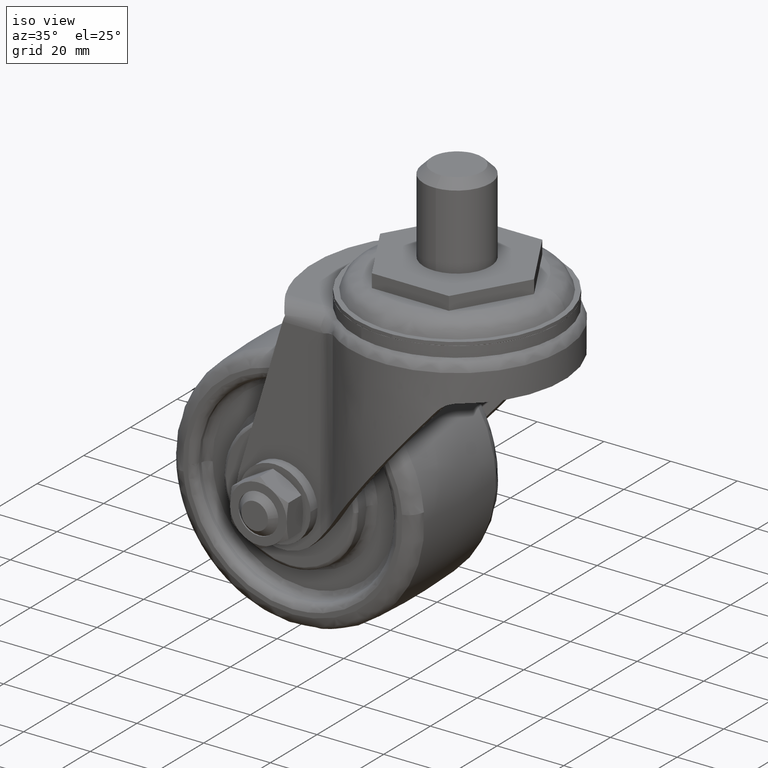
[diagram: clean part render]
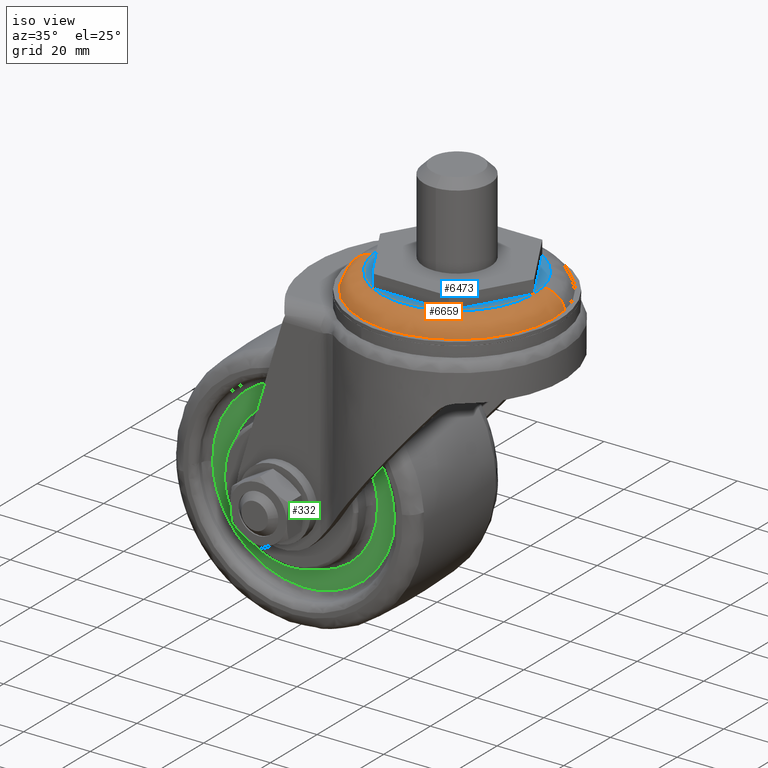
[diagram: same view with three faces highlighted in distinct colors, each labeled with its STEP entity id]
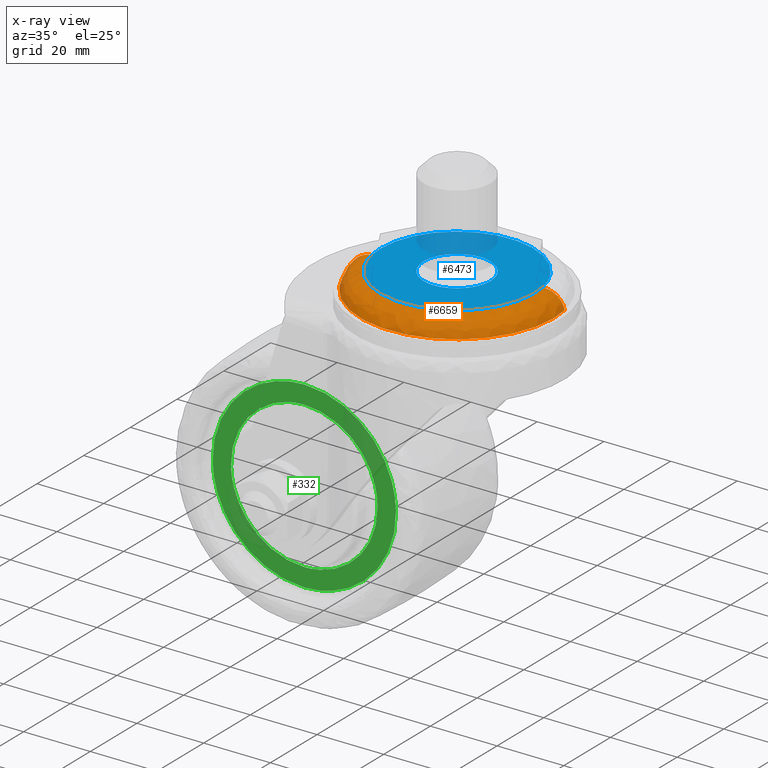
[diagram: x-ray of the same camera — body ghosted, the three highlighted faces saturated]
A machine part, iso view with three faces highlighted in distinct colors.
The next image is the same camera in x-ray (body ghosted, the three faces saturated) — at least one of them is partly hidden behind the body in this view.
Their STEP definitions:

[orange] entity #6659 — the highlighted face is a freeform B-spline surface patch.
#6379=CARTESIAN_POINT('',(-22.592620521137309,-4.309772859542733,-1.379669E-014));
#6380=VERTEX_POINT('',#6379);
#6396=CARTESIAN_POINT('',(23.000014000000000,0.0,0.0));
#6397=VERTEX_POINT('',#6396);
#6398=CARTESIAN_POINT('',(23.000014000000000,0.0,0.0));
#6399=CARTESIAN_POINT('',(23.000028669473270,-0.972803588417565,-2.757607E-017));
#6400=CARTESIAN_POINT('',(22.862408563039349,-3.139548392915637,-1.302827E-016));
#6401=CARTESIAN_POINT('',(22.231122699645510,-6.179443997466869,-4.058087E-016));
#6402=CARTESIAN_POINT('',(21.083316254201819,-9.391740116590832,-8.411413E-016));
#6403=CARTESIAN_POINT('',(19.691026040012481,-12.018677507847629,-1.333206E-015));
#6404=CARTESIAN_POINT('',(17.993055840135131,-14.396727757021930,-1.909896E-015));
#6405=CARTESIAN_POINT('',(16.256694638444671,-16.349764382491209,-2.486050E-015));
#6406=CARTESIAN_POINT('',(13.665208196813319,-18.636460424452650,-3.328141E-015));
#6407=CARTESIAN_POINT('',(10.794774688427260,-20.418823210716528,-4.239597E-015));
#6408=CARTESIAN_POINT('',(7.613433900181442,-21.763400794985600,-5.231890E-015));
#6409=CARTESIAN_POINT('',(4.800924576189715,-22.568614308253789,-6.098269E-015));
#6410=CARTESIAN_POINT('',(1.553116950321378,-23.027597412349941,-7.085390E-015));
#6411=CARTESIAN_POINT('',(-1.506576610872834,-23.015936225283621,-8.002747E-015));
#6412=CARTESIAN_POINT('',(-4.227801998931323,-22.650207870825199,-8.808550E-015));
#6413=CARTESIAN_POINT('',(-6.895740033823636,-22.004703452936841,-9.590438E-015));
#6414=CARTESIAN_POINT('',(-10.048263871403179,-20.813213216455601,-1.050219E-014));
#6415=CARTESIAN_POINT('',(-13.341280400072590,-18.876845342691340,-1.143496E-014));
#6416=CARTESIAN_POINT('',(-16.314995680123570,-16.348654907077680,-1.225518E-014));
#6417=CARTESIAN_POINT('',(-18.362376011001569,-13.954957346354240,-1.280138E-014));
#6418=CARTESIAN_POINT('',(-20.110925887382479,-11.290195269071550,-1.325027E-014));
#6419=CARTESIAN_POINT('',(-21.589075219274580,-8.259831074928215,-1.360769E-014));
#6420=CARTESIAN_POINT('',(-22.327612642162521,-5.699756885056393,-1.375662E-014));
#6421=CARTESIAN_POINT('',(-22.592620521137309,-4.309772859542733,-1.379669E-014));
#6422=B_SPLINE_CURVE_WITH_KNOTS('',3,(#6398,#6399,#6400,#6401,#6402,#6403,#6404,#6405,#6406,#6407,#6408,#6409,#6410,#6411,#6412,#6413,#6414,#6415,#6416,#6417,#6418,#6419,#6420,#6421),.UNSPECIFIED.,.F.,.U.,(4,1,1,1,1,1,1,1,1,1,1,1,1,1,1,1,1,1,1,1,1,4),(0.000000130140734,2.918419872654539,6.500220598274105,9.286116878791951,13.133236202588710,15.388441691995279,18.041623103560301,20.960137027012749,25.735854117803591,28.123707093906042,31.307524444089822,34.491407986216117,37.940405197693202,40.460931165445452,42.716133702046243,46.165278327179877,50.543038554363861,54.124845774179811,57.839304224812281,59.961864093602550,63.676327865737562,67.921368662274347),.UNSPECIFIED.);
#6423=EDGE_CURVE('',#6397,#6380,#6422,.T.);
#6425=CARTESIAN_POINT('',(22.592620521137309,4.309772859542731,-1.367286E-014));
#6426=VERTEX_POINT('',#6425);
#6427=CARTESIAN_POINT('',(22.592620521137306,4.309772859542731,-1.367286E-014));
#6428=CARTESIAN_POINT('',(23.000014001204047,2.174141440883160,-6.836428E-015));
#6429=CARTESIAN_POINT('',(23.000014000000000,0.0,0.0));
#6437=(BOUNDED_CURVE()B_SPLINE_CURVE(2,(#6427,#6428,#6429),.UNSPECIFIED.,.F.,.U.)B_SPLINE_CURVE_WITH_KNOTS((3,3),(0.467838633738463,0.500000000000000),.UNSPECIFIED.)CURVE()GEOMETRIC_REPRESENTATION_ITEM()RATIONAL_B_SPLINE_CURVE((0.934335795156706,0.962320615656880,1.0))REPRESENTATION_ITEM(''));
#6438=EDGE_CURVE('',#6426,#6397,#6437,.T.);
#6503=CARTESIAN_POINT('',(-28.486344023136660,-5.434060746360943,-4.999999999947228));
#6504=VERTEX_POINT('',#6503);
#6520=CARTESIAN_POINT('',(-22.592620521137302,-4.309772859542732,-1.379669E-014));
#6521=CARTESIAN_POINT('',(-27.585914043612377,-5.262294541504986,-2.042939E-009));
#6522=CARTESIAN_POINT('',(-28.486344023136656,-5.434060746360943,-4.999999999947228));
#6530=(BOUNDED_CURVE()B_SPLINE_CURVE(2,(#6520,#6521,#6522),.UNSPECIFIED.,.F.,.U.)B_SPLINE_CURVE_WITH_KNOTS((3,3),(-1.709144384682278,-0.296801827041482),.UNSPECIFIED.)CURVE()GEOMETRIC_REPRESENTATION_ITEM()RATIONAL_B_SPLINE_CURVE((0.896528474551751,0.688060493416934,0.894780459929866))REPRESENTATION_ITEM(''));
#6531=EDGE_CURVE('',#6380,#6504,#6530,.T.);
#6535=CARTESIAN_POINT('',(28.486344023136660,5.434060746360942,-4.999999999947229));
#6536=VERTEX_POINT('',#6535);
#6537=CARTESIAN_POINT('',(22.592620521137309,4.309772859542731,-1.367286E-014));
#6538=CARTESIAN_POINT('',(27.585914043612377,5.262294541504983,-2.042941E-009));
#6539=CARTESIAN_POINT('',(28.486344023136660,5.434060746360942,-4.999999999947228));
#6547=(BOUNDED_CURVE()B_SPLINE_CURVE(2,(#6537,#6538,#6539),.UNSPECIFIED.,.F.,.U.)B_SPLINE_CURVE_WITH_KNOTS((3,3),(-1.709144384682278,-0.296801827041482),.UNSPECIFIED.)CURVE()GEOMETRIC_REPRESENTATION_ITEM()RATIONAL_B_SPLINE_CURVE((0.896528474551751,0.688060493416934,0.894780459929866))REPRESENTATION_ITEM(''));
#6548=EDGE_CURVE('',#6426,#6536,#6547,.T.);
#6581=CARTESIAN_POINT('',(22.096084218915081,4.858699529251706,-0.012154295163467));
#6582=CARTESIAN_POINT('',(22.154974723544179,4.549984692801559,-0.012154295163467));
#6583=CARTESIAN_POINT('',(26.452208210416028,-17.976902136287794,-0.012154295163467));
#6584=CARTESIAN_POINT('',(4.237653037064117,-22.214555173351915,-0.012154295163467));
#6585=CARTESIAN_POINT('',(-17.976902136287794,-26.452208210416028,-0.012154295163467));
#6586=CARTESIAN_POINT('',(-22.274135623131496,-3.925321381474259,-0.012154295163467));
#6587=CARTESIAN_POINT('',(-22.333026127733092,-3.616606545168286,-0.012154295163467));
#6588=CARTESIAN_POINT('',(27.726205353180220,6.096704717576758,0.352151653519839));
#6589=CARTESIAN_POINT('',(27.800101261999277,5.709328797654123,0.352151653519839));
#6590=CARTESIAN_POINT('',(33.192277401768784,-22.557448428715890,0.352151653519839));
#6591=CARTESIAN_POINT('',(5.317414486526452,-27.874862915242343,0.352151653519839));
#6592=CARTESIAN_POINT('',(-22.557448428715869,-33.192277401768784,0.352151653519839));
#6593=CARTESIAN_POINT('',(-27.949624568450076,-4.925500175583969,0.352151653519839));
#6594=CARTESIAN_POINT('',(-28.023520477234616,-4.538124255842245,0.352151653519839));
#6595=CARTESIAN_POINT('',(28.390646760486486,6.242808485145253,-5.381540011107967));
#6596=CARTESIAN_POINT('',(28.466313539174834,5.846149340269499,-5.381540011107966));
#6597=CARTESIAN_POINT('',(33.987709853761416,-23.098023764875080,-5.381540011107967));
#6598=CARTESIAN_POINT('',(5.444843044443163,-28.542866809318244,-5.381540011107966));
#6599=CARTESIAN_POINT('',(-23.098023764875080,-33.987709853761416,-5.381540011107967));
#6600=CARTESIAN_POINT('',(-28.619420079425488,-5.043536748806451,-5.381540011107967));
#6601=CARTESIAN_POINT('',(-28.695086858078497,-4.646877604115943,-5.381540011107967));
#6609=(BOUNDED_SURFACE()B_SPLINE_SURFACE(2,2,((#6581,#6588,#6595),(#6582,#6589,#6596),(#6583,#6590,#6597),(#6584,#6591,#6598),(#6585,#6592,#6599),(#6586,#6593,#6600),(#6587,#6594,#6601)),.UNSPECIFIED.,.F.,.F.,.U.)B_SPLINE_SURFACE_WITH_KNOTS((3,1,2,1,3),(3,3),(0.0,0.962882703629475,49.107017864329023,97.251153025028572,98.214035728200400),(0.0,9.718775954552323),.UNSPECIFIED.)GEOMETRIC_REPRESENTATION_ITEM()RATIONAL_B_SPLINE_SURFACE(((0.929149921966840,0.674091993067575,0.927204762973818),(0.923770116082894,0.670188980233059,0.921836219618715),(0.649400016117692,0.471135325756949,0.648040508624277),(0.918390310198947,0.666285967398543,0.916467676263612),(0.649400016117692,0.471135325756949,0.648040508624277),(0.923770116080337,0.670188980231204,0.921836219616163),(0.929149921961726,0.674091993063865,0.927204762968715)))REPRESENTATION_ITEM('')SURFACE());
#6610=CARTESIAN_POINT('',(29.000014000000000,0.0,-5.0));
#6611=VERTEX_POINT('',#6610);
#6612=CARTESIAN_POINT('',(29.000014000000000,0.0,-5.0));
#6613=CARTESIAN_POINT('',(29.000079649590681,-1.393879565407368,-4.999999999999875));
#6614=CARTESIAN_POINT('',(28.790603979942951,-4.293117614255438,-4.999999999999449));
#6615=CARTESIAN_POINT('',(27.817695907367220,-8.602699083066312,-4.999999999998175));
#6616=CARTESIAN_POINT('',(26.332346960805801,-12.345269167820531,-4.999999999996518));
#6617=CARTESIAN_POINT('',(24.514163725992109,-15.614303773518300,-4.999999999994596));
#6618=CARTESIAN_POINT('',(22.167557635935559,-18.881379436812569,-4.999999999992053));
#6619=CARTESIAN_POINT('',(19.060925921840830,-22.030280372949679,-4.999999999989107));
#6620=CARTESIAN_POINT('',(15.531886752081750,-24.591068396415551,-4.999999999985613));
#6621=CARTESIAN_POINT('',(12.238828015144669,-26.369214682994780,-4.999999999982523));
#6622=CARTESIAN_POINT('',(9.171000922136717,-27.573167874010480,-4.999999999979443));
#6623=CARTESIAN_POINT('',(6.261347677361498,-28.360866214412770,-4.999999999977129));
#6624=CARTESIAN_POINT('',(2.740290879028496,-28.962639419812319,-4.999999999973035));
#6625=CARTESIAN_POINT('',(-1.064003760270146,-29.090849325542990,-4.999999999970345));
#6626=CARTESIAN_POINT('',(-4.836644623842441,-28.650020963775439,-4.999999999966764));
#6627=CARTESIAN_POINT('',(-8.157056572736396,-27.897164305452090,-4.999999999963730));
#6628=CARTESIAN_POINT('',(-11.478449376923271,-26.728508802128381,-4.999999999960956));
#6629=CARTESIAN_POINT('',(-15.306990381894240,-24.765117249994351,-4.999999999957532));
#6630=CARTESIAN_POINT('',(-18.570629075234820,-22.401913495140558,-4.999999999954778));
#6631=CARTESIAN_POINT('',(-21.301680461422539,-19.763900325165590,-4.999999999952520));
#6632=CARTESIAN_POINT('',(-23.228400045963951,-17.444474019133249,-4.999999999950917));
#6633=CARTESIAN_POINT('',(-25.160193699542781,-14.573344251792429,-4.999999999949715));
#6634=CARTESIAN_POINT('',(-27.128894164941510,-10.680783109202959,-4.999999999947310));
#6635=CARTESIAN_POINT('',(-28.120946271049540,-7.350976327160589,-4.999999999948106));
#6636=CARTESIAN_POINT('',(-28.486344023136660,-5.434060746360943,-4.999999999947228));
#6637=B_SPLINE_CURVE_WITH_KNOTS('',3,(#6612,#6613,#6614,#6615,#6616,#6617,#6618,#6619,#6620,#6621,#6622,#6623,#6624,#6625,#6626,#6627,#6628,#6629,#6630,#6631,#6632,#6633,#6634,#6635,#6636),.UNSPECIFIED.,.F.,.U.,(4,1,1,1,1,1,1,1,1,1,1,1,1,1,1,1,1,1,1,1,1,1,4),(0.000000101092240,4.181633387981719,8.697791543772439,13.213978290246629,16.224761118657799,19.904598314879479,25.257125163162179,29.438755553683482,32.951345987124128,36.463970987226141,39.307493816533373,41.983681445618998,47.168855460770587,50.681430403174978,53.357677766129903,57.372080570203792,61.219182317158229,66.237171649061949,69.415220575859195,72.593267189710062,75.269517119046924,79.785723658561267,85.639975786803674),.UNSPECIFIED.);
#6638=EDGE_CURVE('',#6611,#6504,#6637,.T.);
#6639=ORIENTED_EDGE('',*,*,#6638,.F.);
#6640=CARTESIAN_POINT('',(28.486344023136660,5.434060746360942,-4.999999999947229));
#6641=CARTESIAN_POINT('',(29.000013999995243,2.741308427607598,-4.999999999973615));
#6642=CARTESIAN_POINT('',(29.000014000000000,0.0,-5.0));
#6650=(BOUNDED_CURVE()B_SPLINE_CURVE(2,(#6640,#6641,#6642),.UNSPECIFIED.,.F.,.U.)B_SPLINE_CURVE_WITH_KNOTS((3,3),(0.467838633740238,0.500000000000000),.UNSPECIFIED.)CURVE()GEOMETRIC_REPRESENTATION_ITEM()RATIONAL_B_SPLINE_CURVE((0.934335795159797,0.962320615658960,1.0))REPRESENTATION_ITEM(''));
#6651=EDGE_CURVE('',#6536,#6611,#6650,.T.);
#6652=ORIENTED_EDGE('',*,*,#6651,.F.);
#6653=ORIENTED_EDGE('',*,*,#6548,.F.);
#6654=ORIENTED_EDGE('',*,*,#6438,.T.);
#6655=ORIENTED_EDGE('',*,*,#6423,.T.);
#6656=ORIENTED_EDGE('',*,*,#6531,.T.);
#6657=EDGE_LOOP('',(#6639,#6652,#6653,#6654,#6655,#6656));
#6658=FACE_OUTER_BOUND('',#6657,.T.);
#6659=ADVANCED_FACE('',(#6658),#6609,.T.);

[blue] entity #6473 — the highlighted face is a freeform B-spline surface patch.
#6080=CARTESIAN_POINT('',(0.087265355142998,9.999619230640322,-1.240674E-014));
#6081=VERTEX_POINT('',#6080);
#6087=CARTESIAN_POINT('',(-10.0,0.0,0.0));
#6088=VERTEX_POINT('',#6087);
#6089=CARTESIAN_POINT('',(0.087265355142998,9.999619230640320,-1.243450E-014));
#6090=CARTESIAN_POINT('',(0.043633508286649,10.0,-1.243450E-014));
#6091=CARTESIAN_POINT('',(0.0,10.0,-1.243450E-014));
#6092=CARTESIAN_POINT('',(-10.000000000000002,10.000000000000002,-1.243450E-014));
#6093=CARTESIAN_POINT('',(-10.0,0.0,-1.243450E-014));
#6101=(BOUNDED_CURVE()B_SPLINE_CURVE(2,(#6089,#6090,#6091,#6092,#6093),.UNSPECIFIED.,.F.,.U.)B_SPLINE_CURVE_WITH_KNOTS((3,2,3),(0.248460105662208,0.250000000000000,0.500000000000000),.UNSPECIFIED.)CURVE()GEOMETRIC_REPRESENTATION_ITEM()RATIONAL_B_SPLINE_CURVE((0.996414028093914,0.998195901563085,1.0,0.707106781186548,1.0))REPRESENTATION_ITEM(''));
#6102=EDGE_CURVE('',#6081,#6088,#6101,.T.);
#6104=CARTESIAN_POINT('',(-0.087265355143000,-9.999619230640320,-1.240674E-014));
#6105=VERTEX_POINT('',#6104);
#6106=CARTESIAN_POINT('',(-10.0,0.0,-1.243450E-014));
#6107=CARTESIAN_POINT('',(-10.0,-9.913112105791894,-1.243450E-014));
#6108=CARTESIAN_POINT('',(-0.087265355142998,-9.999619230640320,-1.243450E-014));
#6116=(BOUNDED_CURVE()B_SPLINE_CURVE(2,(#6106,#6107,#6108),.UNSPECIFIED.,.F.,.U.)B_SPLINE_CURVE_WITH_KNOTS((3,3),(0.500000000000000,0.748460105662208),.UNSPECIFIED.)CURVE()GEOMETRIC_REPRESENTATION_ITEM()RATIONAL_B_SPLINE_CURVE((1.0,0.708910879623462,0.996414028093914))REPRESENTATION_ITEM(''));
#6117=EDGE_CURVE('',#6088,#6105,#6116,.T.);
#6147=CARTESIAN_POINT('',(10.0,0.0,-1.243450E-014));
#6148=VERTEX_POINT('',#6147);
#6149=CARTESIAN_POINT('',(-0.087265355142998,-9.999619230640320,-1.243450E-014));
#6150=CARTESIAN_POINT('',(-0.043633508286649,-10.0,-1.243450E-014));
#6151=CARTESIAN_POINT('',(0.0,-10.0,-1.243450E-014));
#6152=CARTESIAN_POINT('',(10.000000000000002,-10.000000000000002,-1.243450E-014));
#6153=CARTESIAN_POINT('',(10.0,0.0,-1.243450E-014));
#6161=(BOUNDED_CURVE()B_SPLINE_CURVE(2,(#6149,#6150,#6151,#6152,#6153),.UNSPECIFIED.,.F.,.U.)B_SPLINE_CURVE_WITH_KNOTS((3,2,3),(0.748460105662208,0.750000000000000,1.0),.UNSPECIFIED.)CURVE()GEOMETRIC_REPRESENTATION_ITEM()RATIONAL_B_SPLINE_CURVE((0.996414028093914,0.998195901563085,1.0,0.707106781186548,1.0))REPRESENTATION_ITEM(''));
#6162=EDGE_CURVE('',#6105,#6148,#6161,.T.);
#6164=CARTESIAN_POINT('',(10.0,0.0,-1.243450E-014));
#6165=CARTESIAN_POINT('',(10.0,9.913112105791894,-1.243450E-014));
#6166=CARTESIAN_POINT('',(0.087265355142998,9.999619230640320,-1.243450E-014));
#6174=(BOUNDED_CURVE()B_SPLINE_CURVE(2,(#6164,#6165,#6166),.UNSPECIFIED.,.F.,.U.)B_SPLINE_CURVE_WITH_KNOTS((3,3),(0.0,0.248460105662208),.UNSPECIFIED.)CURVE()GEOMETRIC_REPRESENTATION_ITEM()RATIONAL_B_SPLINE_CURVE((1.0,0.708910879623462,0.996414028093914))REPRESENTATION_ITEM(''));
#6175=EDGE_CURVE('',#6148,#6081,#6174,.T.);
#6374=CARTESIAN_POINT('',(-25.297715309443021,-25.297493669598602,-1.243450E-014));
#6375=CARTESIAN_POINT('',(25.297716543259920,-25.297493669598602,-1.243450E-014));
#6376=CARTESIAN_POINT('',(-25.297715309443021,25.297495312342249,-1.243450E-014));
#6377=CARTESIAN_POINT('',(25.297716543259920,25.297495312342249,-1.243450E-014));
#6378=B_SPLINE_SURFACE_WITH_KNOTS('',1,1,((#6374,#6376),(#6375,#6377)),.UNSPECIFIED.,.F.,.F.,.U.,(2,2),(2,2),(0.0,50.595431852702937),(0.0,50.594988981940851),.UNSPECIFIED.);
#6379=CARTESIAN_POINT('',(-22.592620521137309,-4.309772859542733,-1.379669E-014));
#6380=VERTEX_POINT('',#6379);
#6381=CARTESIAN_POINT('',(-23.000014000000000,0.0,0.0));
#6382=VERTEX_POINT('',#6381);
#6383=CARTESIAN_POINT('',(-22.592620521137306,-4.309772859542733,-1.379669E-014));
#6384=CARTESIAN_POINT('',(-23.000014001204047,-2.174141440883162,-6.898346E-015));
#6385=CARTESIAN_POINT('',(-23.000014000000000,0.0,0.0));
#6393=(BOUNDED_CURVE()B_SPLINE_CURVE(2,(#6383,#6384,#6385),.UNSPECIFIED.,.F.,.U.)B_SPLINE_CURVE_WITH_KNOTS((3,3),(0.967838633738463,1.0),.UNSPECIFIED.)CURVE()GEOMETRIC_REPRESENTATION_ITEM()RATIONAL_B_SPLINE_CURVE((0.934335795156706,0.962320615656880,1.0))REPRESENTATION_ITEM(''));
#6394=EDGE_CURVE('',#6380,#6382,#6393,.T.);
#6395=ORIENTED_EDGE('',*,*,#6394,.F.);
#6396=CARTESIAN_POINT('',(23.000014000000000,0.0,0.0));
#6397=VERTEX_POINT('',#6396);
#6398=CARTESIAN_POINT('',(23.000014000000000,0.0,0.0));
#6399=CARTESIAN_POINT('',(23.000028669473270,-0.972803588417565,-2.757607E-017));
#6400=CARTESIAN_POINT('',(22.862408563039349,-3.139548392915637,-1.302827E-016));
#6401=CARTESIAN_POINT('',(22.231122699645510,-6.179443997466869,-4.058087E-016));
#6402=CARTESIAN_POINT('',(21.083316254201819,-9.391740116590832,-8.411413E-016));
#6403=CARTESIAN_POINT('',(19.691026040012481,-12.018677507847629,-1.333206E-015));
#6404=CARTESIAN_POINT('',(17.993055840135131,-14.396727757021930,-1.909896E-015));
#6405=CARTESIAN_POINT('',(16.256694638444671,-16.349764382491209,-2.486050E-015));
#6406=CARTESIAN_POINT('',(13.665208196813319,-18.636460424452650,-3.328141E-015));
#6407=CARTESIAN_POINT('',(10.794774688427260,-20.418823210716528,-4.239597E-015));
#6408=CARTESIAN_POINT('',(7.613433900181442,-21.763400794985600,-5.231890E-015));
#6409=CARTESIAN_POINT('',(4.800924576189715,-22.568614308253789,-6.098269E-015));
#6410=CARTESIAN_POINT('',(1.553116950321378,-23.027597412349941,-7.085390E-015));
#6411=CARTESIAN_POINT('',(-1.506576610872834,-23.015936225283621,-8.002747E-015));
#6412=CARTESIAN_POINT('',(-4.227801998931323,-22.650207870825199,-8.808550E-015));
#6413=CARTESIAN_POINT('',(-6.895740033823636,-22.004703452936841,-9.590438E-015));
#6414=CARTESIAN_POINT('',(-10.048263871403179,-20.813213216455601,-1.050219E-014));
#6415=CARTESIAN_POINT('',(-13.341280400072590,-18.876845342691340,-1.143496E-014));
#6416=CARTESIAN_POINT('',(-16.314995680123570,-16.348654907077680,-1.225518E-014));
#6417=CARTESIAN_POINT('',(-18.362376011001569,-13.954957346354240,-1.280138E-014));
#6418=CARTESIAN_POINT('',(-20.110925887382479,-11.290195269071550,-1.325027E-014));
#6419=CARTESIAN_POINT('',(-21.589075219274580,-8.259831074928215,-1.360769E-014));
#6420=CARTESIAN_POINT('',(-22.327612642162521,-5.699756885056393,-1.375662E-014));
#6421=CARTESIAN_POINT('',(-22.592620521137309,-4.309772859542733,-1.379669E-014));
#6422=B_SPLINE_CURVE_WITH_KNOTS('',3,(#6398,#6399,#6400,#6401,#6402,#6403,#6404,#6405,#6406,#6407,#6408,#6409,#6410,#6411,#6412,#6413,#6414,#6415,#6416,#6417,#6418,#6419,#6420,#6421),.UNSPECIFIED.,.F.,.U.,(4,1,1,1,1,1,1,1,1,1,1,1,1,1,1,1,1,1,1,1,1,4),(0.000000130140734,2.918419872654539,6.500220598274105,9.286116878791951,13.133236202588710,15.388441691995279,18.041623103560301,20.960137027012749,25.735854117803591,28.123707093906042,31.307524444089822,34.491407986216117,37.940405197693202,40.460931165445452,42.716133702046243,46.165278327179877,50.543038554363861,54.124845774179811,57.839304224812281,59.961864093602550,63.676327865737562,67.921368662274347),.UNSPECIFIED.);
#6423=EDGE_CURVE('',#6397,#6380,#6422,.T.);
#6424=ORIENTED_EDGE('',*,*,#6423,.F.);
#6425=CARTESIAN_POINT('',(22.592620521137309,4.309772859542731,-1.367286E-014));
#6426=VERTEX_POINT('',#6425);
#6427=CARTESIAN_POINT('',(22.592620521137306,4.309772859542731,-1.367286E-014));
#6428=CARTESIAN_POINT('',(23.000014001204047,2.174141440883160,-6.836428E-015));
#6429=CARTESIAN_POINT('',(23.000014000000000,0.0,0.0));
#6437=(BOUNDED_CURVE()B_SPLINE_CURVE(2,(#6427,#6428,#6429),.UNSPECIFIED.,.F.,.U.)B_SPLINE_CURVE_WITH_KNOTS((3,3),(0.467838633738463,0.500000000000000),.UNSPECIFIED.)CURVE()GEOMETRIC_REPRESENTATION_ITEM()RATIONAL_B_SPLINE_CURVE((0.934335795156706,0.962320615656880,1.0))REPRESENTATION_ITEM(''));
#6438=EDGE_CURVE('',#6426,#6397,#6437,.T.);
#6439=ORIENTED_EDGE('',*,*,#6438,.F.);
#6440=CARTESIAN_POINT('',(-23.000014000000000,0.0,0.0));
#6441=CARTESIAN_POINT('',(-23.000213956539760,1.459260008108452,-4.094148E-017));
#6442=CARTESIAN_POINT('',(-22.814196744966040,3.404819680020836,-1.508970E-016));
#6443=CARTESIAN_POINT('',(-22.132148493280489,6.425716836441688,-4.385044E-016));
#6444=CARTESIAN_POINT('',(-21.158651701134591,9.279648102286918,-8.080496E-016));
#6445=CARTESIAN_POINT('',(-19.246149414911770,12.838444448687500,-1.476505E-015));
#6446=CARTESIAN_POINT('',(-16.869564321844180,15.773704882827380,-2.265384E-015));
#6447=CARTESIAN_POINT('',(-14.272395122304310,18.118726548963370,-3.103244E-015));
#6448=CARTESIAN_POINT('',(-11.354645120650490,20.135267238102021,-4.027162E-015));
#6449=CARTESIAN_POINT('',(-7.640779044060388,21.846106623981360,-5.179126E-015));
#6450=CARTESIAN_POINT('',(-3.929663275639003,22.747966758075769,-6.307542E-015));
#6451=CARTESIAN_POINT('',(-0.798481520652805,23.034691329001461,-7.246298E-015));
#6452=CARTESIAN_POINT('',(2.301354520735966,22.969420299557850,-8.165846E-015));
#6453=CARTESIAN_POINT('',(5.627825963720340,22.404585583856420,-9.138722E-015));
#6454=CARTESIAN_POINT('',(8.857722845972999,21.299300677279462,-1.006771E-014));
#6455=CARTESIAN_POINT('',(12.109111785500581,19.679146094551161,-1.098862E-014));
#6456=CARTESIAN_POINT('',(15.313968832861860,17.358551893232271,-1.187601E-014));
#6457=CARTESIAN_POINT('',(18.153064982565351,14.298293583802341,-1.263391E-014));
#6458=CARTESIAN_POINT('',(20.026225896410310,11.443459555400640,-1.311047E-014));
#6459=CARTESIAN_POINT('',(21.589554017609888,8.214854568046532,-1.348443E-014));
#6460=CARTESIAN_POINT('',(22.294558109052769,5.873539015827323,-1.362820E-014));
#6461=CARTESIAN_POINT('',(22.592620521137309,4.309772859542731,-1.367286E-014));
#6462=B_SPLINE_CURVE_WITH_KNOTS('',3,(#6440,#6441,#6442,#6443,#6444,#6445,#6446,#6447,#6448,#6449,#6450,#6451,#6452,#6453,#6454,#6455,#6456,#6457,#6458,#6459,#6460,#6461),.UNSPECIFIED.,.F.,.U.,(4,1,1,1,1,1,1,1,1,1,1,1,1,1,1,1,1,1,1,4),(0.000000130139739,4.377723381207922,5.836922404615059,9.286116878792051,13.398539691472131,17.908964009349098,20.562149938334649,23.878649697094300,28.521713208142881,32.766793924865368,35.287359783323282,37.940405197695512,42.052872304843888,45.369326854335768,48.155167812126273,52.930910140226970,57.176014676313883,60.625146358241992,63.145681093494289,67.921368662274276),.UNSPECIFIED.);
#6463=EDGE_CURVE('',#6382,#6426,#6462,.T.);
#6464=ORIENTED_EDGE('',*,*,#6463,.F.);
#6465=EDGE_LOOP('',(#6395,#6424,#6439,#6464));
#6466=FACE_OUTER_BOUND('',#6465,.T.);
#6467=ORIENTED_EDGE('',*,*,#6175,.F.);
#6468=ORIENTED_EDGE('',*,*,#6162,.F.);
#6469=ORIENTED_EDGE('',*,*,#6117,.F.);
#6470=ORIENTED_EDGE('',*,*,#6102,.F.);
#6471=EDGE_LOOP('',(#6467,#6468,#6469,#6470));
#6472=FACE_BOUND('',#6471,.T.);
#6473=ADVANCED_FACE('',(#6466,#6472),#6378,.T.);

[green] entity #332 — the highlighted face is a freeform B-spline surface patch.
#53=CARTESIAN_POINT('',(-8.508670690577311,-14.000000000000011,-61.808922373617747));
#54=VERTEX_POINT('',#53);
#68=CARTESIAN_POINT('',(-35.999985999999900,-14.0,-90.0));
#69=VERTEX_POINT('',#68);
#70=CARTESIAN_POINT('',(-8.508670690577313,-14.000000000000005,-61.808922373617740));
#71=CARTESIAN_POINT('',(-8.499985896529283,-14.000000000000011,-62.154406614469536));
#72=CARTESIAN_POINT('',(-8.499985897183450,-14.000000000000011,-62.499999997415387));
#73=CARTESIAN_POINT('',(-8.499985949237727,-14.000000000000002,-89.999999998723936));
#74=CARTESIAN_POINT('',(-35.999985999999900,-14.0,-90.0));
#82=(BOUNDED_CURVE()B_SPLINE_CURVE(2,(#70,#71,#72,#73,#74),.UNSPECIFIED.,.F.,.U.)B_SPLINE_CURVE_WITH_KNOTS((3,2,3),(0.245579891775705,0.250000000000000,0.500000000000000),.UNSPECIFIED.)CURVE()GEOMETRIC_REPRESENTATION_ITEM()RATIONAL_B_SPLINE_CURVE((0.989826157694907,0.994821521098730,1.0,0.707106781186547,1.0))REPRESENTATION_ITEM(''));
#83=EDGE_CURVE('',#54,#69,#82,.T.);
#85=CARTESIAN_POINT('',(-63.491301309422482,-14.000000000000011,-63.191077626382267));
#86=VERTEX_POINT('',#85);
#87=CARTESIAN_POINT('',(-35.999985999999900,-14.0,-90.0));
#88=CARTESIAN_POINT('',(-62.817377647926186,-14.000000000000002,-90.000000001308550));
#89=CARTESIAN_POINT('',(-63.491301309422482,-14.000000000000009,-63.191077626382274));
#97=(BOUNDED_CURVE()B_SPLINE_CURVE(2,(#87,#88,#89),.UNSPECIFIED.,.F.,.U.)B_SPLINE_CURVE_WITH_KNOTS((3,3),(0.500000000000000,0.745579891775705),.UNSPECIFIED.)CURVE()GEOMETRIC_REPRESENTATION_ITEM()RATIONAL_B_SPLINE_CURVE((1.0,0.712285260087818,0.989826157694907))REPRESENTATION_ITEM(''));
#98=EDGE_CURVE('',#69,#86,#97,.T.);
#221=CARTESIAN_POINT('',(-35.999985999999900,-14.0,-35.0));
#222=VERTEX_POINT('',#221);
#223=CARTESIAN_POINT('',(-63.491301309422482,-14.000000000000009,-63.191077626382274));
#224=CARTESIAN_POINT('',(-63.499986103470512,-14.000000000000012,-62.845593385530485));
#225=CARTESIAN_POINT('',(-63.499986102816351,-14.000000000000011,-62.500000002584613));
#226=CARTESIAN_POINT('',(-63.499986050762075,-14.000000000000002,-35.000000001276071));
#227=CARTESIAN_POINT('',(-35.999985999999900,-14.0,-35.0));
#235=(BOUNDED_CURVE()B_SPLINE_CURVE(2,(#223,#224,#225,#226,#227),.UNSPECIFIED.,.F.,.U.)B_SPLINE_CURVE_WITH_KNOTS((3,2,3),(0.745579891775705,0.750000000000000,1.0),.UNSPECIFIED.)CURVE()GEOMETRIC_REPRESENTATION_ITEM()RATIONAL_B_SPLINE_CURVE((0.989826157694907,0.994821521098730,1.0,0.707106781186547,1.0))REPRESENTATION_ITEM(''));
#236=EDGE_CURVE('',#86,#222,#235,.T.);
#238=CARTESIAN_POINT('',(-35.999985999999900,-14.0,-35.0));
#239=CARTESIAN_POINT('',(-9.182594352073593,-14.0,-34.999999998691450));
#240=CARTESIAN_POINT('',(-8.508670690577313,-14.000000000000005,-61.808922373617740));
#248=(BOUNDED_CURVE()B_SPLINE_CURVE(2,(#238,#239,#240),.UNSPECIFIED.,.F.,.U.)B_SPLINE_CURVE_WITH_KNOTS((3,3),(0.0,0.245579891775705),.UNSPECIFIED.)CURVE()GEOMETRIC_REPRESENTATION_ITEM()RATIONAL_B_SPLINE_CURVE((1.0,0.712285260087817,0.989826157694907))REPRESENTATION_ITEM(''));
#249=EDGE_CURVE('',#222,#54,#248,.T.);
#255=CARTESIAN_POINT('',(-66.237683602266799,-14.0,-32.252750106600672));
#256=CARTESIAN_POINT('',(-66.237683602266799,-14.0,-92.747251368614286));
#257=CARTESIAN_POINT('',(-5.762286922983922,-14.0,-32.252750106600672));
#258=CARTESIAN_POINT('',(-5.762286922983922,-14.0,-92.747251368614286));
#259=B_SPLINE_SURFACE_WITH_KNOTS('',1,1,((#255,#257),(#256,#258)),.UNSPECIFIED.,.F.,.F.,.U.,(2,2),(2,2),(0.0,60.494501262013607),(0.0,60.475396679282881),.UNSPECIFIED.);
#260=ORIENTED_EDGE('',*,*,#236,.F.);
#261=ORIENTED_EDGE('',*,*,#98,.F.);
#262=ORIENTED_EDGE('',*,*,#83,.F.);
#263=ORIENTED_EDGE('',*,*,#249,.F.);
#264=EDGE_LOOP('',(#260,#261,#262,#263));
#265=FACE_OUTER_BOUND('',#264,.T.);
#266=CARTESIAN_POINT('',(-35.999985999999900,-14.0,-40.500000000000000));
#267=VERTEX_POINT('',#266);
#268=CARTESIAN_POINT('',(-14.006933835943270,-14.0,-61.947137900225570));
#269=VERTEX_POINT('',#268);
#270=CARTESIAN_POINT('',(-35.999985999999900,-14.0,-40.500000000000000));
#271=CARTESIAN_POINT('',(-14.546072724138089,-13.999999999999998,-40.500000000002196));
#272=CARTESIAN_POINT('',(-14.006933835943265,-14.000000000000004,-61.947137900225570));
#280=(BOUNDED_CURVE()B_SPLINE_CURVE(2,(#270,#271,#272),.UNSPECIFIED.,.F.,.U.)B_SPLINE_CURVE_WITH_KNOTS((3,3),(0.0,0.245579891769605),.UNSPECIFIED.)CURVE()GEOMETRIC_REPRESENTATION_ITEM()RATIONAL_B_SPLINE_CURVE((1.0,0.712285260094964,0.989826157681119))REPRESENTATION_ITEM(''));
#281=EDGE_CURVE('',#267,#269,#280,.T.);
#282=ORIENTED_EDGE('',*,*,#281,.T.);
#283=CARTESIAN_POINT('',(-35.999985999999900,-14.0,-84.499999999999986));
#284=VERTEX_POINT('',#283);
#285=CARTESIAN_POINT('',(-14.006933835943265,-14.000000000000004,-61.947137900225570));
#286=CARTESIAN_POINT('',(-13.999986000174149,-14.0,-62.223525293277319));
#287=CARTESIAN_POINT('',(-13.999986000173051,-14.0,-62.500000000004349));
#288=CARTESIAN_POINT('',(-13.999986000085388,-13.999999999999998,-84.500000000002132));
#289=CARTESIAN_POINT('',(-35.999985999999900,-14.0,-84.499999999999986));
#297=(BOUNDED_CURVE()B_SPLINE_CURVE(2,(#285,#286,#287,#288,#289),.UNSPECIFIED.,.F.,.U.)B_SPLINE_CURVE_WITH_KNOTS((3,2,3),(0.245579891769605,0.250000000000000,0.500000000000000),.UNSPECIFIED.)CURVE()GEOMETRIC_REPRESENTATION_ITEM()RATIONAL_B_SPLINE_CURVE((0.989826157681119,0.994821521091584,1.0,0.707106781186548,1.0))REPRESENTATION_ITEM(''));
#298=EDGE_CURVE('',#269,#284,#297,.T.);
#299=ORIENTED_EDGE('',*,*,#298,.T.);
#300=CARTESIAN_POINT('',(-57.993038164056543,-14.0,-63.052862099774430));
#301=VERTEX_POINT('',#300);
#302=CARTESIAN_POINT('',(-35.999985999999900,-14.0,-84.499999999999986));
#303=CARTESIAN_POINT('',(-57.453899275861716,-14.0,-84.499999999997769));
#304=CARTESIAN_POINT('',(-57.993038164056536,-14.000000000000004,-63.052862099774430));
#312=(BOUNDED_CURVE()B_SPLINE_CURVE(2,(#302,#303,#304),.UNSPECIFIED.,.F.,.U.)B_SPLINE_CURVE_WITH_KNOTS((3,3),(0.500000000000000,0.745579891769605),.UNSPECIFIED.)CURVE()GEOMETRIC_REPRESENTATION_ITEM()RATIONAL_B_SPLINE_CURVE((1.0,0.712285260094964,0.989826157681119))REPRESENTATION_ITEM(''));
#313=EDGE_CURVE('',#284,#301,#312,.T.);
#314=ORIENTED_EDGE('',*,*,#313,.T.);
#315=CARTESIAN_POINT('',(-57.993038164056536,-14.000000000000004,-63.052862099774430));
#316=CARTESIAN_POINT('',(-57.999985999825640,-14.0,-62.776474706722674));
#317=CARTESIAN_POINT('',(-57.999985999826741,-14.0,-62.499999999995637));
#318=CARTESIAN_POINT('',(-57.999985999914415,-13.999999999999998,-40.499999999997854));
#319=CARTESIAN_POINT('',(-35.999985999999900,-14.0,-40.500000000000000));
#327=(BOUNDED_CURVE()B_SPLINE_CURVE(2,(#315,#316,#317,#318,#319),.UNSPECIFIED.,.F.,.U.)B_SPLINE_CURVE_WITH_KNOTS((3,2,3),(0.745579891769605,0.750000000000000,1.0),.UNSPECIFIED.)CURVE()GEOMETRIC_REPRESENTATION_ITEM()RATIONAL_B_SPLINE_CURVE((0.989826157681119,0.994821521091584,1.0,0.707106781186548,1.0))REPRESENTATION_ITEM(''));
#328=EDGE_CURVE('',#301,#267,#327,.T.);
#329=ORIENTED_EDGE('',*,*,#328,.T.);
#330=EDGE_LOOP('',(#282,#299,#314,#329));
#331=FACE_BOUND('',#330,.T.);
#332=ADVANCED_FACE('',(#265,#331),#259,.T.);